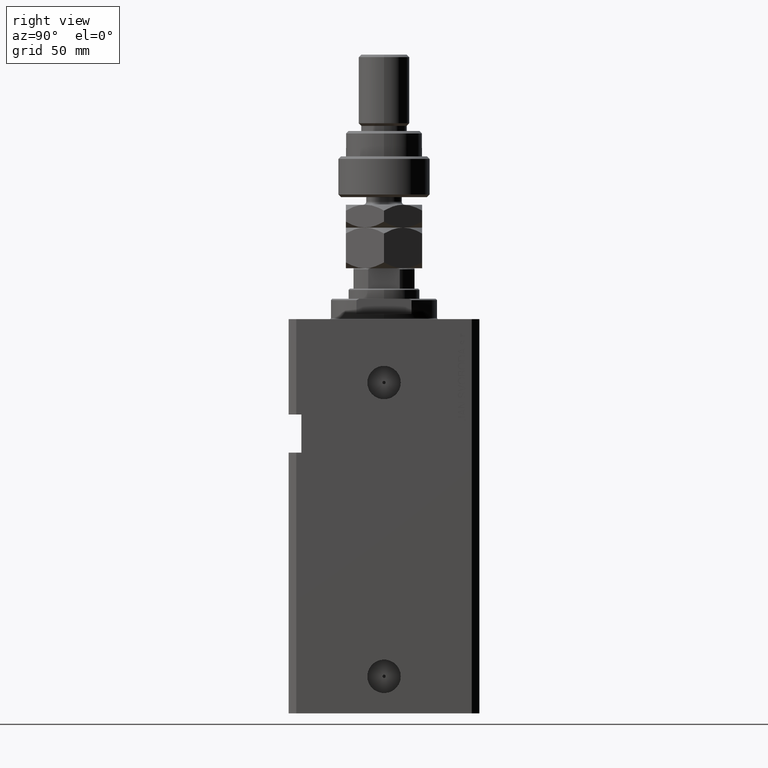
[diagram: clean part render]
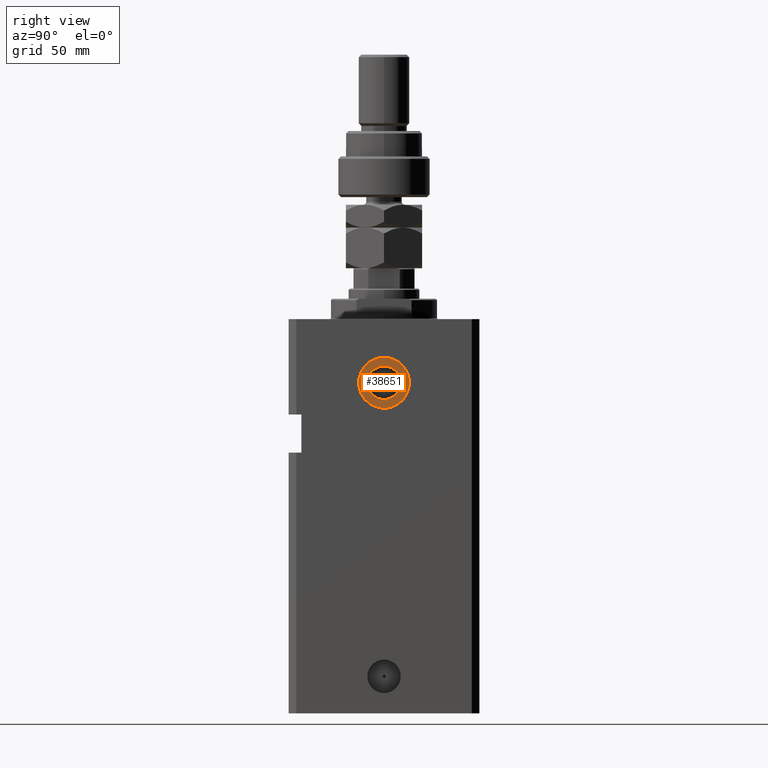
[diagram: same view with one face highlighted and labeled with its STEP entity id]
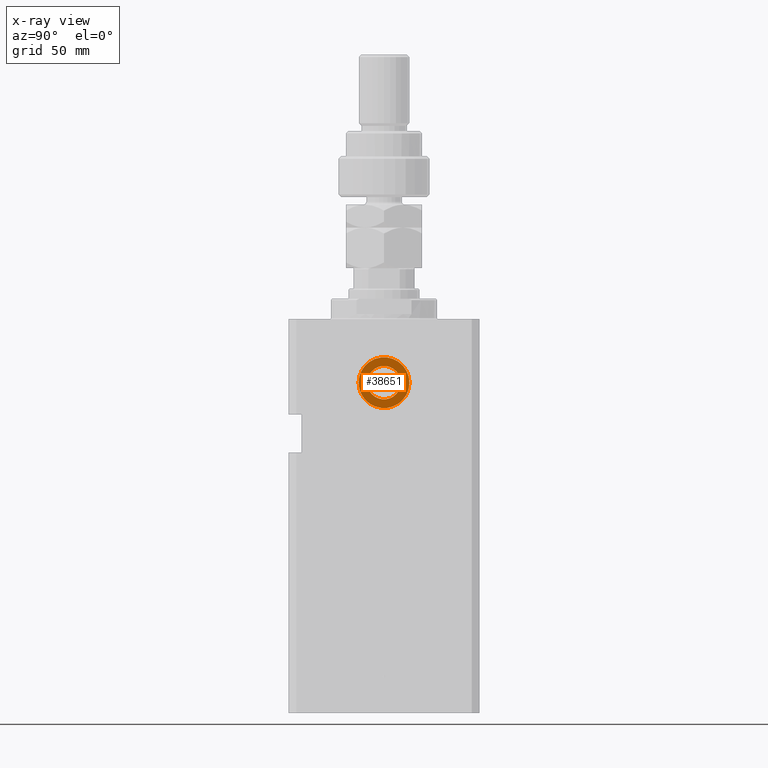
[diagram: x-ray of the same camera — body ghosted, the highlighted face saturated]
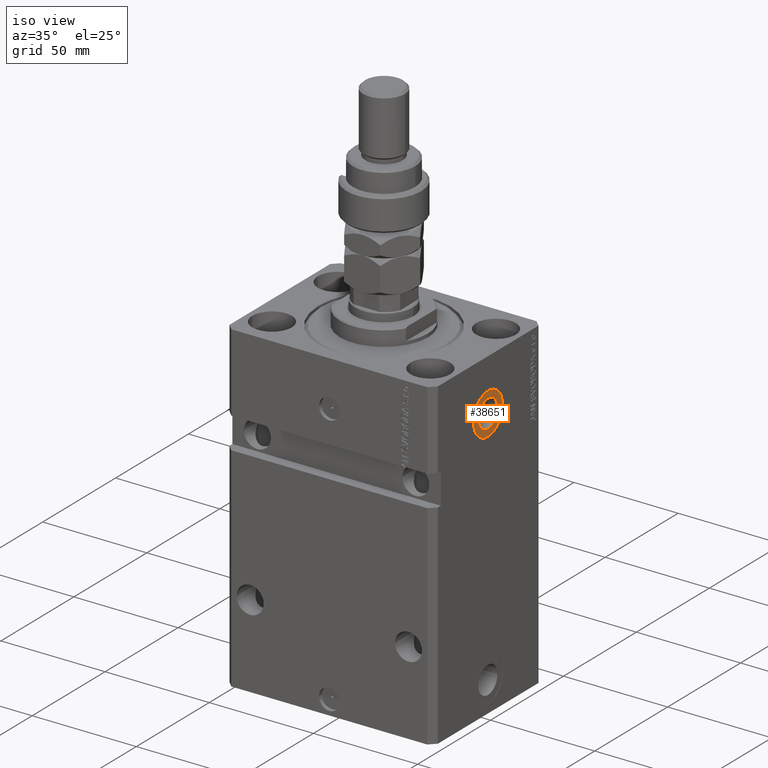
[diagram: same view with one face highlighted and labeled with its STEP entity id]
A machine part, right view. The second image highlights one B-rep face of the part: STEP entity #38651.
The next image is the same camera in x-ray: the body ghosted, the highlighted face saturated — about 0% of this face is hidden behind the body in this view.
A second angle (iso view) of the same face is appended — the face is thin or edge-on in the first view.
In plain terms, the highlighted planar face has unit normal (1, -0, 0).
Its self-contained STEP definition (entity closure, byte-faithful):
#2439 = DIRECTION ( 'NONE',  ( 1.370906090437597808E-14, 1.000000000000000000, 0.000000000000000000 ) ) ;
#3410 = CARTESIAN_POINT ( 'NONE',  ( 49.90000000000016911, -6.580000000000372218, -25.00000000000000000 ) ) ;
#5564 = DIRECTION ( 'NONE',  ( 1.000000000000000000, -1.334402673828349134E-14, 0.000000000000000000 ) ) ;
#6593 = ORIENTED_EDGE ( 'NONE', *, *, #46750, .F. ) ;
#9201 = DIRECTION ( 'NONE',  ( 1.000000000000000000, -1.334402673828349134E-14, 0.000000000000000000 ) ) ;
#9822 = CIRCLE ( 'NONE', #35058, 6.580000000000002736 ) ;
#12755 = CARTESIAN_POINT ( 'NONE',  ( 49.90000000000025437, -3.707512124632281298E-13, -25.00000000000000000 ) ) ;
#12902 = AXIS2_PLACEMENT_3D ( 'NONE', #20578, #36348, #17601 ) ;
#13391 = PLANE ( 'NONE',  #16680 ) ;
#16680 = AXIS2_PLACEMENT_3D ( 'NONE', #17103, #9201, #47177 ) ;
#16860 = FACE_OUTER_BOUND ( 'NONE', #41348, .T. ) ;
#17103 = CARTESIAN_POINT ( 'NONE',  ( 49.90000000000025437, -3.707512124632281298E-13, -25.00000000000000000 ) ) ;
#17246 = ORIENTED_EDGE ( 'NONE', *, *, #43214, .T. ) ;
#17601 = DIRECTION ( 'NONE',  ( 1.318389841742373392E-14, 1.000000000000000000, 0.000000000000000000 ) ) ;
#18578 = DIRECTION ( 'NONE',  ( 1.318389841742373392E-14, 1.000000000000000000, 0.000000000000000000 ) ) ;
#19067 = CARTESIAN_POINT ( 'NONE',  ( 49.90000000000025437, -3.707512124632281298E-13, -25.00000000000000000 ) ) ;
#20578 = CARTESIAN_POINT ( 'NONE',  ( 49.90000000000025437, -3.707512124632281298E-13, -25.00000000000000000 ) ) ;
#20719 = ORIENTED_EDGE ( 'NONE', *, *, #30320, .F. ) ;
#21047 = CARTESIAN_POINT ( 'NONE',  ( 49.90000000000012648, -10.00000000000037126, -25.00000000000000000 ) ) ;
#21499 = VERTEX_POINT ( 'NONE', #3410 ) ;
#24121 = VERTEX_POINT ( 'NONE', #48478 ) ;
#24388 = EDGE_CURVE ( 'NONE', #24121, #29904, #36131, .T. ) ;
#25425 = DIRECTION ( 'NONE',  ( 1.000000000000000000, -1.334402673828349134E-14, 0.000000000000000000 ) ) ;
#25581 = VERTEX_POINT ( 'NONE', #35023 ) ;
#27818 = DIRECTION ( 'NONE',  ( 1.370906090437597808E-14, 1.000000000000000000, 0.000000000000000000 ) ) ;
#29449 = CIRCLE ( 'NONE', #12902, 10.00000000000000000 ) ;
#29904 = VERTEX_POINT ( 'NONE', #21047 ) ;
#30320 = EDGE_CURVE ( 'NONE', #21499, #25581, #36981, .T. ) ;
#30693 = AXIS2_PLACEMENT_3D ( 'NONE', #36273, #25425, #2439 ) ;
#31907 = FACE_BOUND ( 'NONE', #36543, .T. ) ;
#33647 = DIRECTION ( 'NONE',  ( 1.000000000000000000, -1.334402673828349134E-14, 0.000000000000000000 ) ) ;
#35023 = CARTESIAN_POINT ( 'NONE',  ( 49.90000000000034674, 6.579999999999632365, -25.00000000000000000 ) ) ;
#35058 = AXIS2_PLACEMENT_3D ( 'NONE', #12755, #5564, #27818 ) ;
#36131 = CIRCLE ( 'NONE', #47170, 10.00000000000000000 ) ;
#36273 = CARTESIAN_POINT ( 'NONE',  ( 49.90000000000025437, -3.707512124632281298E-13, -25.00000000000000000 ) ) ;
#36348 = DIRECTION ( 'NONE',  ( 1.000000000000000000, -1.334402673828349134E-14, 0.000000000000000000 ) ) ;
#36543 = EDGE_LOOP ( 'NONE', ( #6593, #20719 ) ) ;
#36981 = CIRCLE ( 'NONE', #30693, 6.580000000000002736 ) ;
#38651 = ADVANCED_FACE ( 'NONE', ( #31907, #16860 ), #13391, .T. ) ;
#41348 = EDGE_LOOP ( 'NONE', ( #43144, #17246 ) ) ;
#43144 = ORIENTED_EDGE ( 'NONE', *, *, #24388, .T. ) ;
#43214 = EDGE_CURVE ( 'NONE', #29904, #24121, #29449, .T. ) ;
#46750 = EDGE_CURVE ( 'NONE', #25581, #21499, #9822, .T. ) ;
#47170 = AXIS2_PLACEMENT_3D ( 'NONE', #19067, #33647, #18578 ) ;
#47177 = DIRECTION ( 'NONE',  ( 1.334402673828349134E-14, 1.000000000000000000, 0.000000000000000000 ) ) ;
#48478 = CARTESIAN_POINT ( 'NONE',  ( 49.90000000000038938, 9.999999999999628741, -25.00000000000000000 ) ) ;